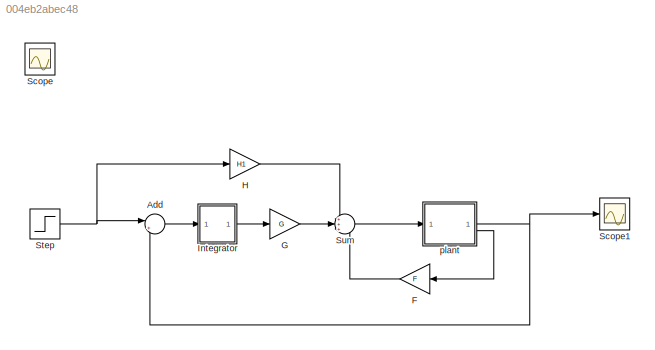
MODEL slx_004eb2abec48
KIND model
CONFIG AbsTol = auto
CONFIG EnableMultiTasking = off
CONFIG FixedStep = auto
CONFIG MaxStep = auto
CONFIG MinStep = auto
CONFIG RelTol = 1e-3
CONFIG SampleTimeConstraint = Unconstrained
CONFIG SolverName = VariableStepAuto
CONFIG StartTime = 0.0
CONFIG StopTime = 10.0
BLOCK [Sum] Add
  Inputs = |+-
BLOCK [Gain] F
  Gain = F
  Multiplication = Matrix(K*u) (u vector)
BLOCK [Gain] G
  Gain = G
  Multiplication = Matrix(K*u) (u vector)
BLOCK [Gain] H
  Gain = H1
  Multiplication = Matrix(K*u) (u vector)
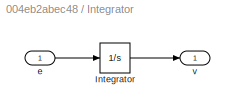
BLOCK [SubSystem] Integrator
BLOCK [Integrator] Integrator/Integrator
BLOCK [Inport] Integrator/e
BLOCK [Outport] Integrator/v
BLOCK [Scope] Scope
  Floating = off
  IOType = viewer
  NumInputPorts = 1
  ScopeSpecificationString = Simulink.scopes.TimeScopeBlockCfg('CurrentConfiguration', extmgr.ConfigurationSet(extmgr.Configuration('Core','General UI',true),extmgr.Configuration('Core','Source UI',true),extmgr.Configuration('Sources','WiredSimulink',true),extmgr.Configuration('Visuals','Time Domain',true),extmgr.Configuration('Tools','Plot Navigation',true),extmgr.Configuration('Tools','Measurements',true,'Version','2023a'))...<+61ch>
BLOCK [Scope] Scope1
  Floating = off
  NumInputPorts = 1
  ScopeSpecificationString = Simulink.scopes.TimeScopeBlockCfg('CurrentConfiguration', extmgr.ConfigurationSet(extmgr.Configuration('Core','General UI',true),extmgr.Configuration('Core','Source UI',true),extmgr.Configuration('Sources','WiredSimulink',true,'DataLoggingVariableName','ScopeData1'),extmgr.Configuration('Visuals','Time Domain',true),extmgr.Configuration('Tools','Plot Navigation',true),extmgr.Configuration('Tools',...<+40ch>
BLOCK [Step] Step
  SampleTime = 0
BLOCK [Sum] Sum
  Inputs = +++
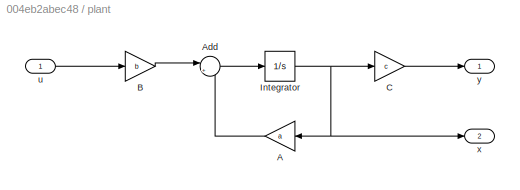
BLOCK [SubSystem] plant
BLOCK [Gain] plant/A
  Gain = a
  Multiplication = Matrix(K*u) (u vector)
BLOCK [Sum] plant/Add
  Inputs = |++
BLOCK [Gain] plant/B
  Gain = b
  Multiplication = Matrix(K*u) (u vector)
BLOCK [Gain] plant/C
  Gain = c
  Multiplication = Matrix(K*u) (u vector)
BLOCK [Integrator] plant/Integrator
BLOCK [Inport] plant/u
BLOCK [Outport] plant/x
  Port = 2
BLOCK [Outport] plant/y
LINE Add:1 -> Integrator:1
LINE F:1 -> Sum:3
LINE G:1 -> Sum:2
LINE H:1 -> Sum:1
LINE Integrator/Integrator:1 -> Integrator/v:1
LINE Integrator/e:1 -> Integrator/Integrator:1
LINE Integrator:1 -> G:1
NET Step:1 -> Add:1, H:1
LINE Sum:1 -> plant:1
LINE plant/A:1 -> plant/Add:2
LINE plant/Add:1 -> plant/Integrator:1
LINE plant/B:1 -> plant/Add:1
LINE plant/C:1 -> plant/y:1
NET plant/Integrator:1 -> plant/A:1, plant/C:1, plant/x:1
LINE plant/u:1 -> plant/B:1
NET plant:1 -> Add:2, Scope1:1
LINE plant:2 -> F:1
note: NET lines group one-source signal fan-out (src -> all destinations, sorted); 1:1 wires keep LINE
